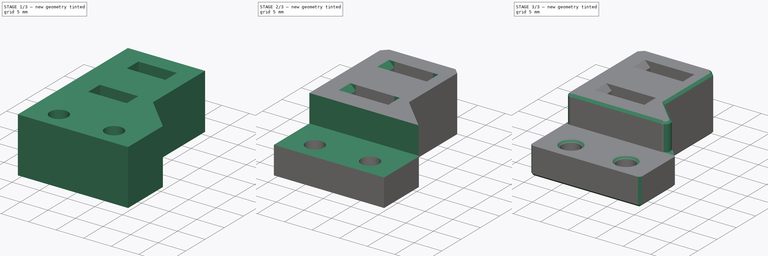
[diagram: build sequence overview — one tinted view per stage of 3, left to right]
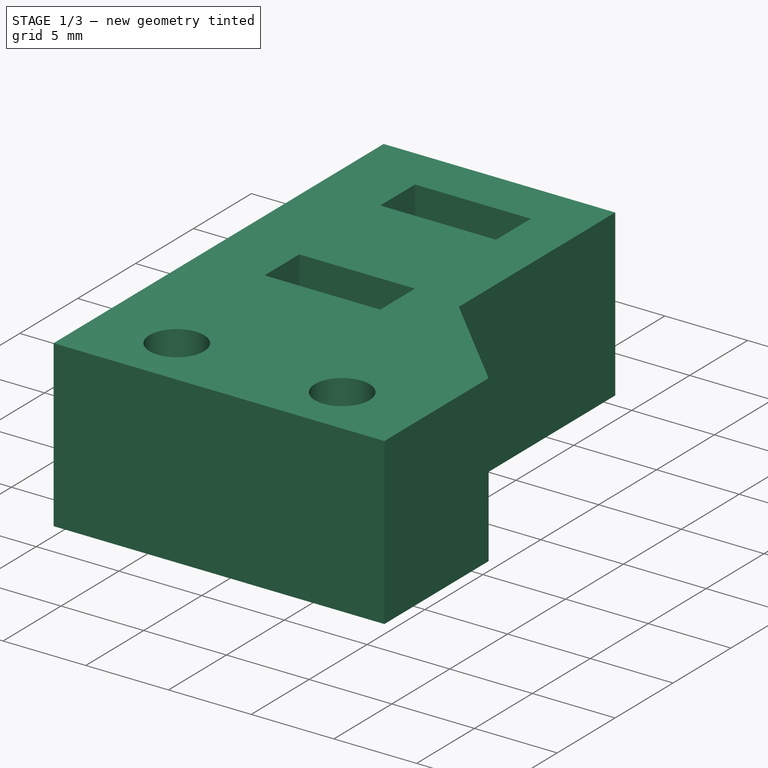
[diagram: stage 1 of 3 — iso view after this stage's code; geometry added in this stage tinted green]
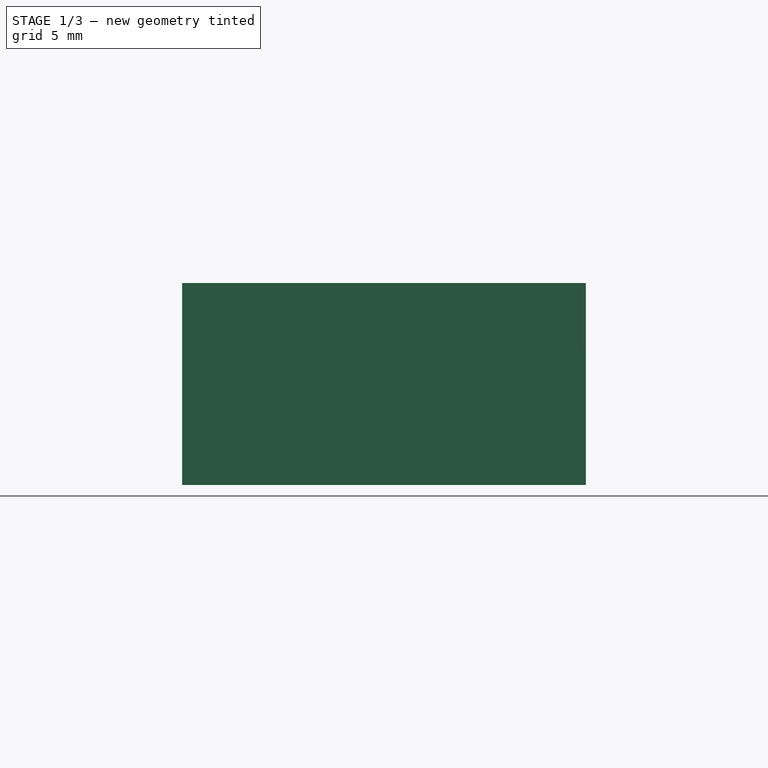
[diagram: stage 1 of 3 — front view after this stage's code; geometry added in this stage tinted green]
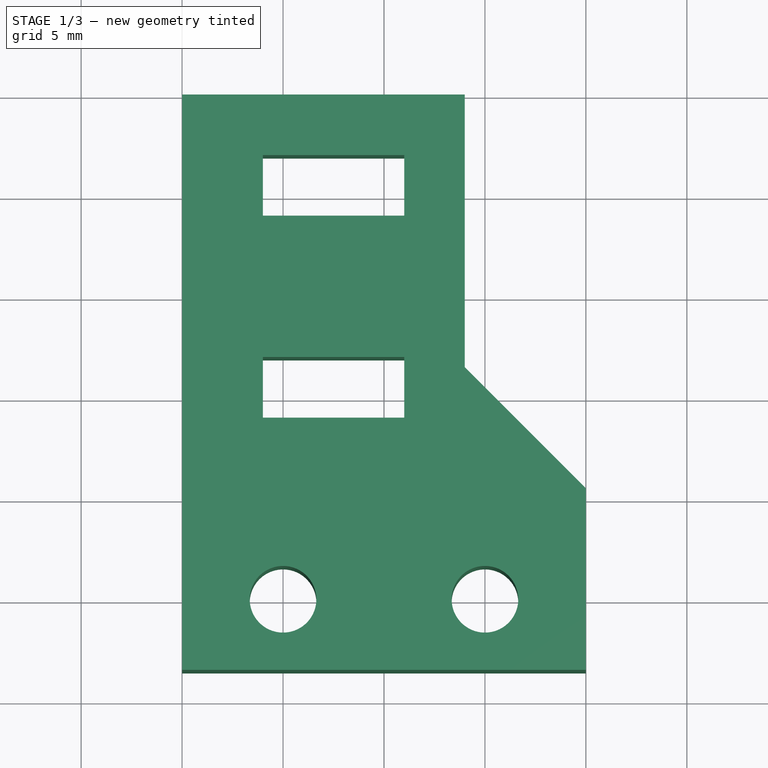
[diagram: stage 1 of 3 — top view after this stage's code; geometry added in this stage tinted green]
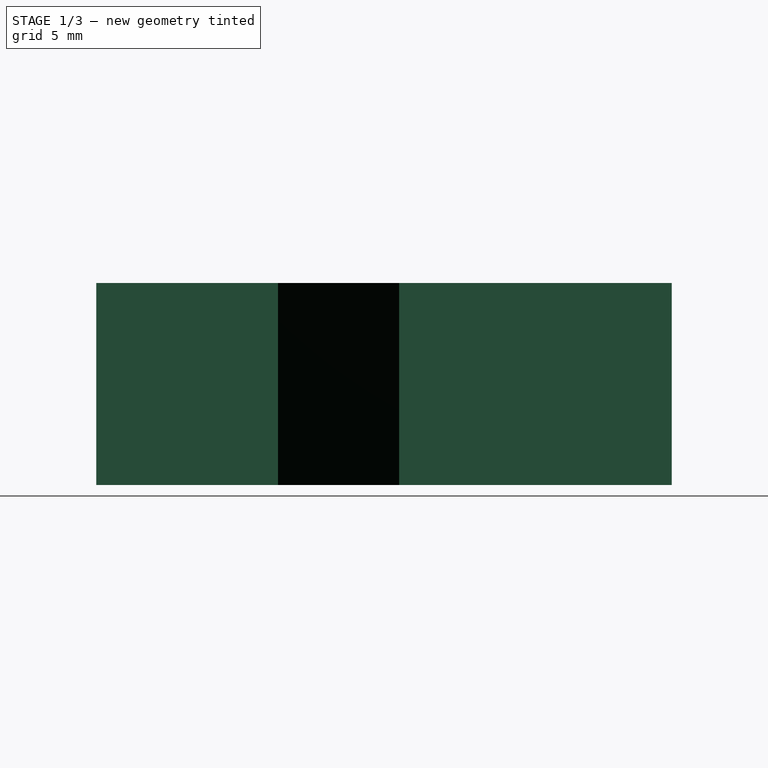
[diagram: stage 1 of 3 — right view after this stage's code; geometry added in this stage tinted green]
FCSTD DOCUMENT  (FreeCAD 0.19R24366 (Git))
Label: cable-mounter
License: All rights reserved
LicenseURL: http://en.wikipedia.org/wiki/All_rights_reserved
objects: Sketcher::SketchObject×3, PartDesign::Pocket×2, PartDesign::Chamfer×2, PartDesign::Pad×1, PartDesign::Fillet×1, PartDesign::Body×1
note: 16 computed .brp shape members not serialized (recipe doc carries the construction recipe); baked Part::Feature solids carry a one-line shape summary decoded from their .brp

FEATURE [Sketcher::SketchObject] Sketch041
  FullyConstrained = true
  MapMode = 5
  Support = -> [XY_Plane019]
  sketch-geometry (8):
    g0: Circle CenterX=-5 CenterY=0 CenterZ=0 NormalX=0 NormalY=0 NormalZ=1 AngleXU=0 Radius=1.65
    g1: Circle CenterX=5 CenterY=0 CenterZ=0 NormalX=0 NormalY=0 NormalZ=1 AngleXU=0 Radius=1.65
    g2: LineSegment StartX=-10 StartY=-3.5 StartZ=0 EndX=10 EndY=-3.5 EndZ=0
    g3: LineSegment StartX=4 StartY=25 StartZ=0 EndX=-10 EndY=25 EndZ=0
    g4: LineSegment StartX=-10 StartY=25 StartZ=0 EndX=-10 EndY=-3.5 EndZ=0
    g5: LineSegment StartX=4 StartY=25 StartZ=0 EndX=4 EndY=11.5 EndZ=0
    g6: LineSegment StartX=4 StartY=11.5 StartZ=0 EndX=10 EndY=5.5 EndZ=0
    g7: LineSegment StartX=10 StartY=5.5 StartZ=0 EndX=10 EndY=-3.5 EndZ=0
  constraints (24):
    c: PointOnObject(g0,g-1)
    c: PointOnObject(g1,g-1)
    c: DistanceX(g0,g-1) = 5
    c: DistanceX(g-1,g1) = 5
    c: Equal(g0,g1)
    c: Radius(g1) = 1.65
    c: Coincident(g3,g4)
    c: Coincident(g4,g2)
    c: Horizontal(g2)
    c: Horizontal(g3)
    c: Vertical(g4)
    c: DistanceY(g2,g-1) = 3.5
    c: DistanceY(g-1,g3) = 25
    c: DistanceX(g2,g-1) = 10
    c: DistanceX(g-1,g2) = 10
    c: Coincident(g3,g5)
    c: Vertical(g5)
    c: Coincident(g5,g6)
    c: Coincident(g6,g7)
    c: Coincident(g7,g2)
    c: Vertical(g7)
    c: DistanceY(g1,g6) = 5.5
    c: DistanceX(g5,g1) = 1
    c: DistanceY(g6,g5) = 6
FEATURE [PartDesign::Pad] Pad008
  Direction = (1,1,1)
  Length = 10
  Length2 = 100
  Profile = -> Sketch041
  Type = 0
FEATURE [Sketcher::SketchObject] Sketch042
  ExternalGeometry = -> [Pad008]
  FullyConstrained = true
  MapMode = 5
  Placement = pos=(0,0,10) rot=(0,0,1;0rad)
  Support = -> [Pad008]
  sketch-geometry (8):
    g0: LineSegment StartX=-6 StartY=22 StartZ=0 EndX=1 EndY=22 EndZ=0
    g1: LineSegment StartX=1 StartY=22 StartZ=0 EndX=1 EndY=19 EndZ=0
    g2: LineSegment StartX=1 StartY=19 StartZ=0 EndX=-6 EndY=19 EndZ=0
    g3: LineSegment StartX=-6 StartY=19 StartZ=0 EndX=-6 EndY=22 EndZ=0
    g4: LineSegment StartX=-6 StartY=12 StartZ=0 EndX=1 EndY=12 EndZ=0
    g5: LineSegment StartX=1 StartY=12 StartZ=0 EndX=1 EndY=9 EndZ=0
    g6: LineSegment StartX=1 StartY=9 StartZ=0 EndX=-6 EndY=9 EndZ=0
    g7: LineSegment StartX=-6 StartY=9 StartZ=0 EndX=-6 EndY=12 EndZ=0
  constraints (24):
    c: Coincident(g0,g1)
    c: Coincident(g1,g2)
    c: Coincident(g2,g3)
    c: Coincident(g3,g0)
    c: Horizontal(g0)
    c: Horizontal(g2)
    c: Vertical(g1)
    c: Vertical(g3)
    c: Coincident(g4,g5)
    c: Coincident(g5,g6)
    c: Coincident(g6,g7)
    c: Coincident(g7,g4)
    c: Horizontal(g4)
    c: Horizontal(g6)
    c: Vertical(g5)
    c: Vertical(g7)
    c: Vertical(g2,g4)
    c: Vertical(g1,g4)
    c: DistanceY(g3,g3) = 3
    c: DistanceY(g7,g7) = 3
    c: DistanceY(g4,g2) = 7
    c: DistanceX(g-3,g0) = 4
    c: DistanceX(g0,g0) = 7
    c: DistanceY(g0,g-3) = 3
FEATURE [PartDesign::Pocket] Pocket028
  BaseFeature = -> Pad008
  Length = 5
  Length2 = 100
  Profile = -> Sketch042
  Type = 1
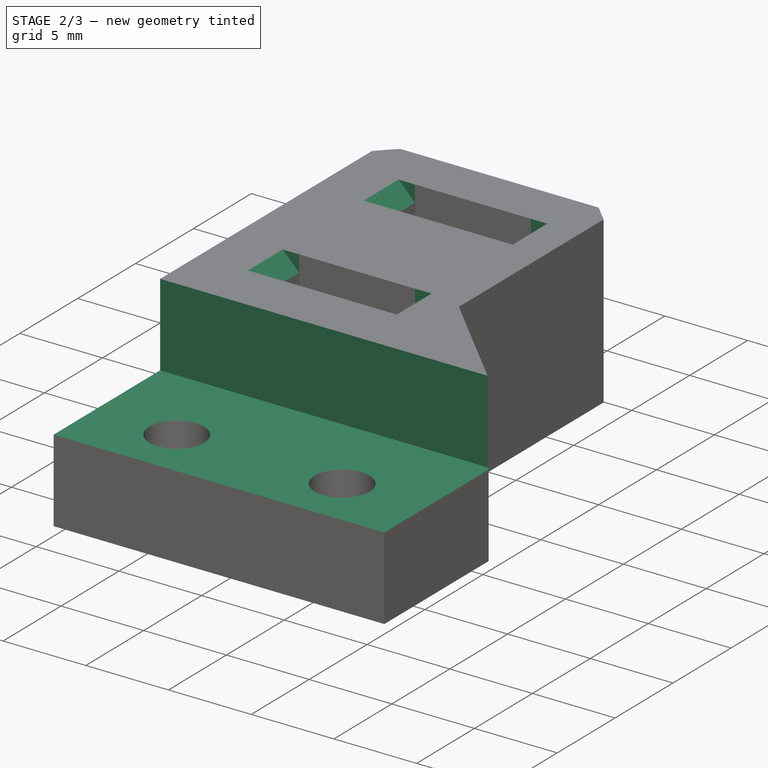
[diagram: stage 2 of 3 — iso view after this stage's code; geometry added in this stage tinted green]
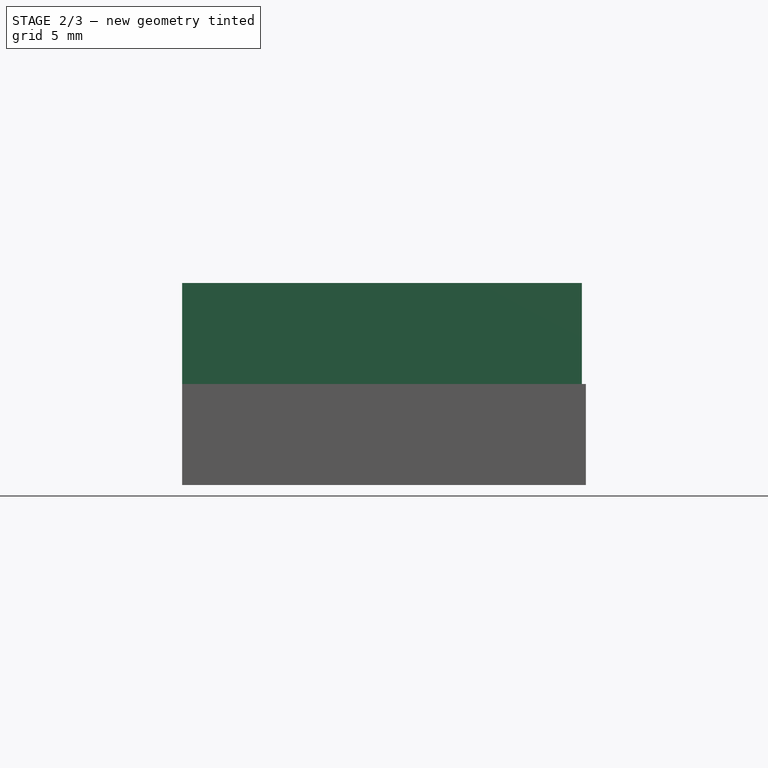
[diagram: stage 2 of 3 — front view after this stage's code; geometry added in this stage tinted green]
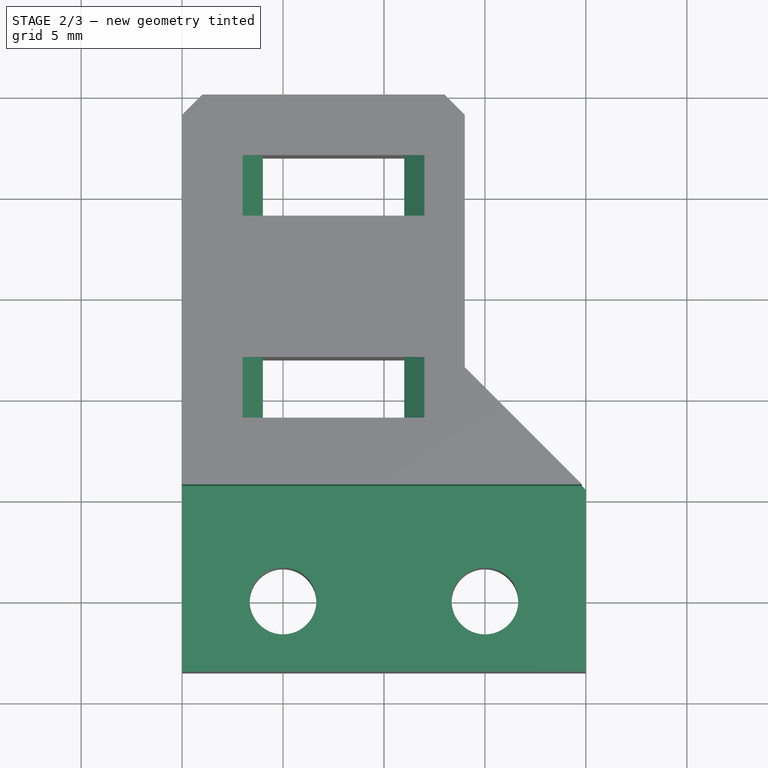
[diagram: stage 2 of 3 — top view after this stage's code; geometry added in this stage tinted green]
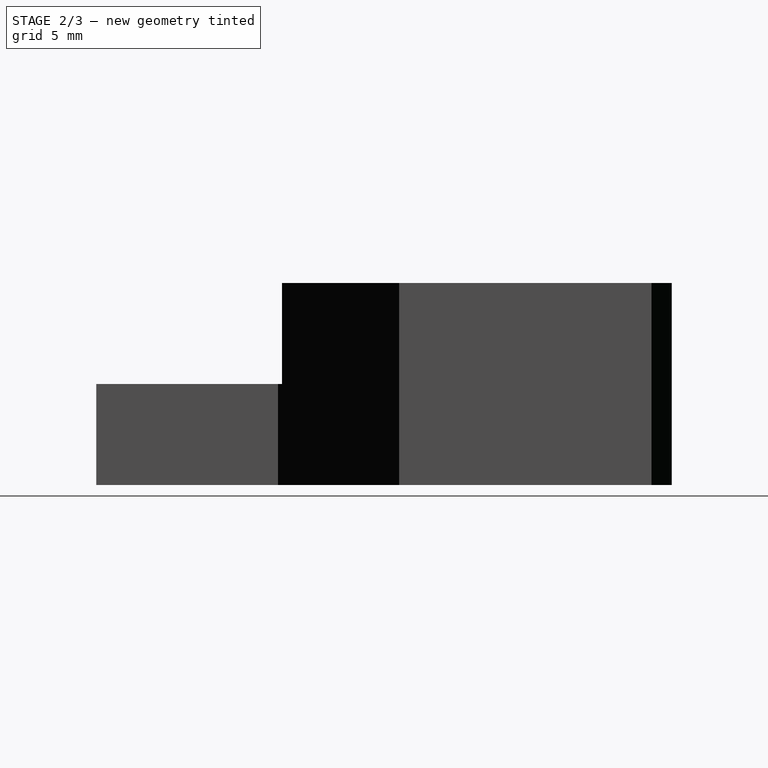
[diagram: stage 2 of 3 — right view after this stage's code; geometry added in this stage tinted green]
FEATURE [PartDesign::Chamfer] Chamfer014
  Angle = 45
  Base = -> Pocket028 [Edge2,Edge1,Edge33,Edge29,Edge31,Edge35,Edge20,Edge22,Edge16,Edge18]
  BaseFeature = -> Pocket028
  ChamferType = 0
  FlipDirection = false
  Size = 1
  Size2 = 1
  SupportTransform = false
FEATURE [Sketcher::SketchObject] Sketch043
  ExternalGeometry = -> [Chamfer014]
  FullyConstrained = true
  MapMode = 5
  Placement = pos=(0,0,10) rot=(0,0,1;0rad)
  Support = -> [Chamfer014]
  sketch-geometry (4):
    g0: LineSegment StartX=-10 StartY=5.7 StartZ=0 EndX=10 EndY=5.7 EndZ=0
    g1: LineSegment StartX=10 StartY=5.7 StartZ=0 EndX=10 EndY=-3.5 EndZ=0
    g2: LineSegment StartX=10 StartY=-3.5 StartZ=0 EndX=-10 EndY=-3.5 EndZ=0
    g3: LineSegment StartX=-10 StartY=-3.5 StartZ=0 EndX=-10 EndY=5.7 EndZ=0
  constraints (11):
    c: Coincident(g0,g1)
    c: Coincident(g1,g2)
    c: Coincident(g2,g3)
    c: Coincident(g3,g0)
    c: Horizontal(g0)
    c: Horizontal(g2)
    c: Vertical(g1)
    c: Vertical(g3)
    c: PointOnObject(g0,g-3)
    c: Coincident(g1,g-4)
    c: DistanceY(g-1,g0) = 5.7
FEATURE [PartDesign::Pocket] Pocket029
  BaseFeature = -> Chamfer014
  Length = 5
  Length2 = 100
  Profile = -> Sketch043
  Type = 0
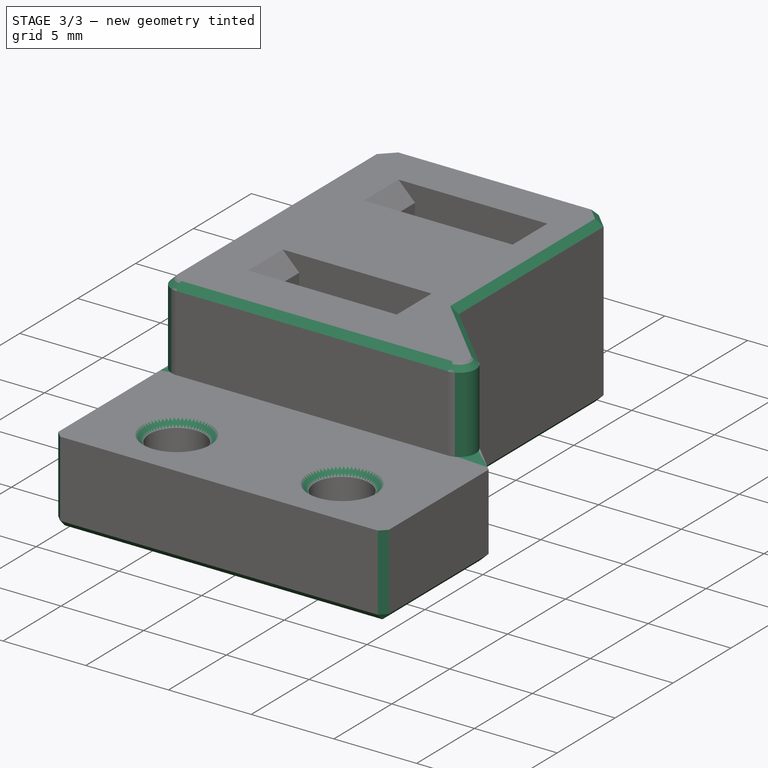
[diagram: stage 3 of 3 — iso view after this stage's code; geometry added in this stage tinted green]
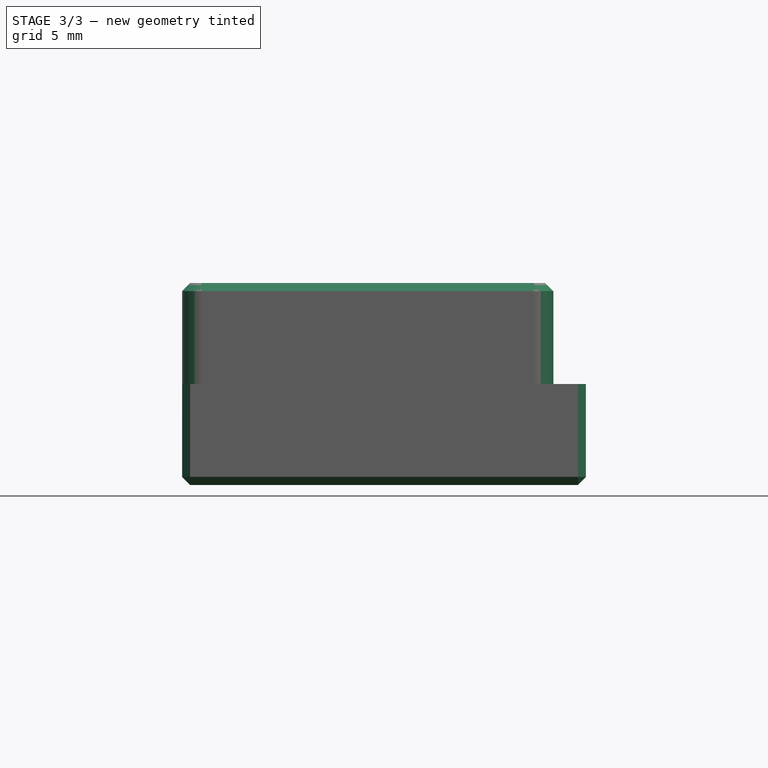
[diagram: stage 3 of 3 — front view after this stage's code; geometry added in this stage tinted green]
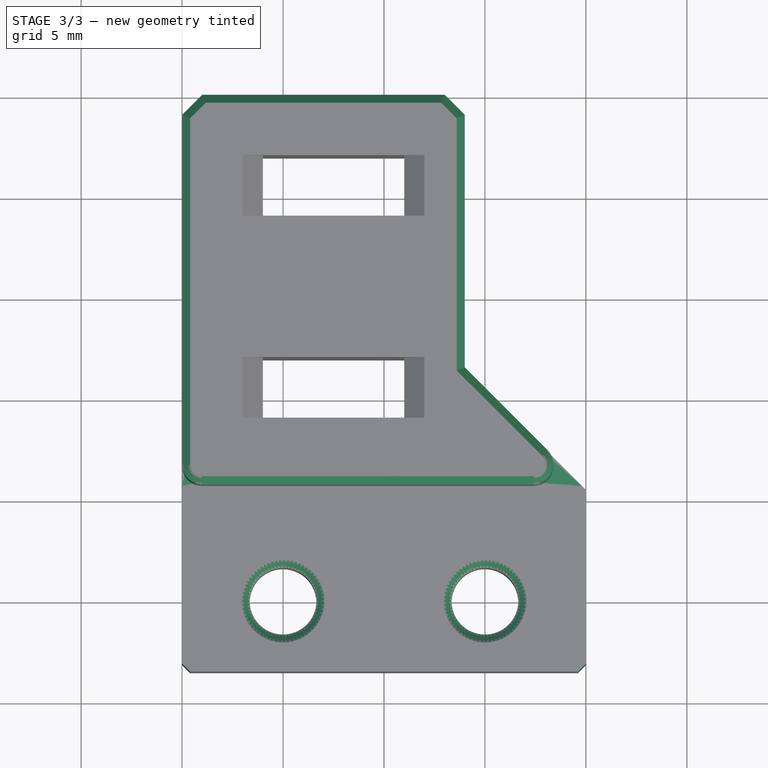
[diagram: stage 3 of 3 — top view after this stage's code; geometry added in this stage tinted green]
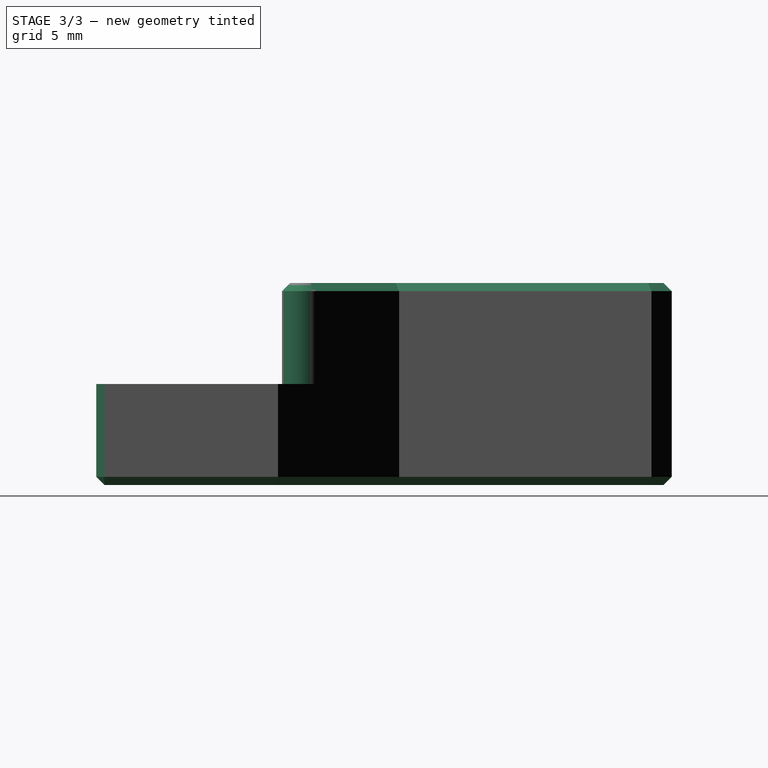
[diagram: stage 3 of 3 — right view after this stage's code; geometry added in this stage tinted green]
FEATURE [PartDesign::Fillet] Fillet004
  Base = -> Pocket029 [Edge60,Edge57]
  BaseFeature = -> Pocket029
  Radius = 1
  SupportTransform = false
FEATURE [PartDesign::Chamfer] Chamfer015
  Angle = 45
  Base = -> Fillet004 [Edge46,Edge49,Edge42,Edge38,Edge34,Edge29,Edge95,Edge97,Edge96,Edge94,Edge48,Edge102,Edge2,Edge4,Edge6,Edge8,Edge9,Edge7,Edge5,Edge3,Edge1,Edge93,Edge92]
  BaseFeature = -> Fillet004
  ChamferType = 0
  FlipDirection = false
  Size = 0.4
  Size2 = 1
  SupportTransform = false
FEATURE [PartDesign::Body] Body002002002002006  label="cable-mounter"
  Group = -> [Sketch041,Pad008,Sketch042,Pocket028,Chamfer014,Sketch043,Pocket029,Fillet004,Chamfer015]
  Origin = -> Origin019
  Tip = -> Chamfer015
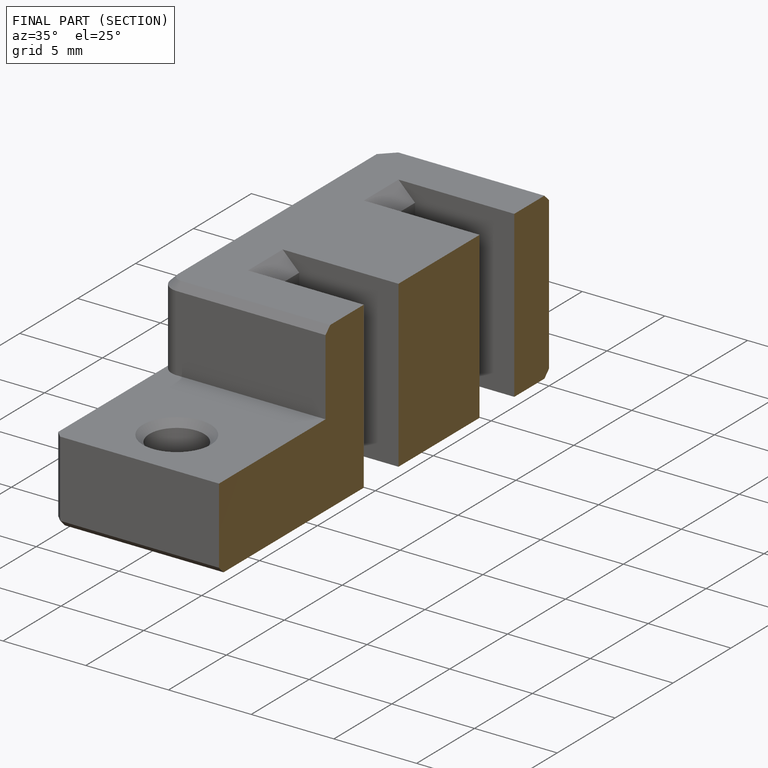
[diagram: finished part — half-section view (interior)]
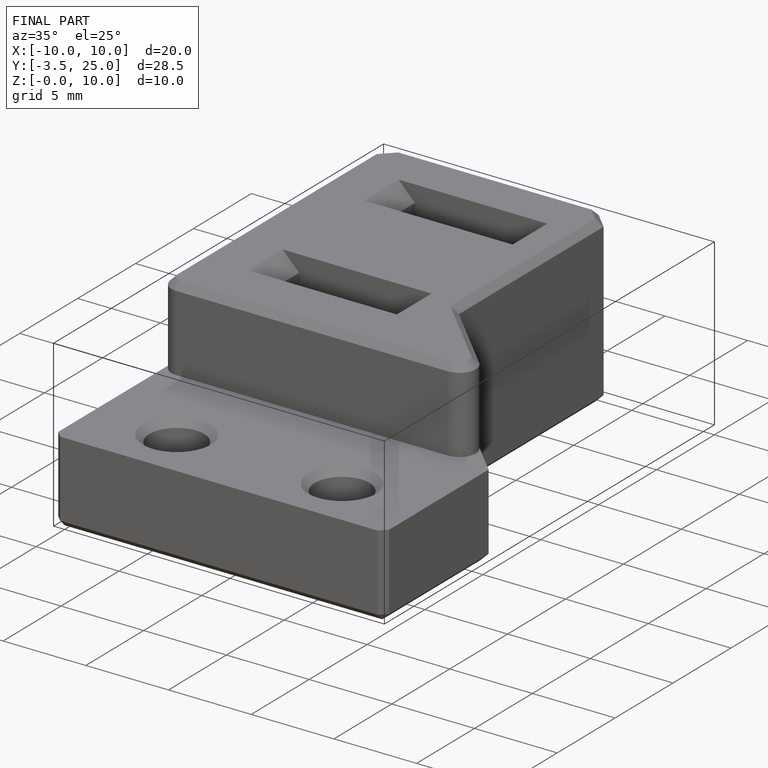
[diagram: finished part — iso view with bounding-box wireframe]
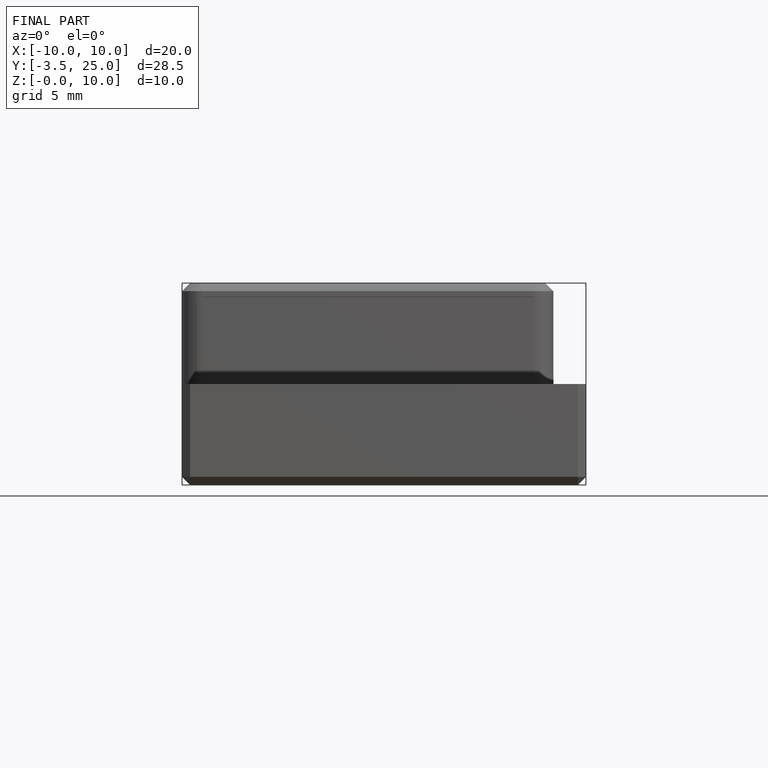
[diagram: finished part — front view with bounding-box wireframe]
